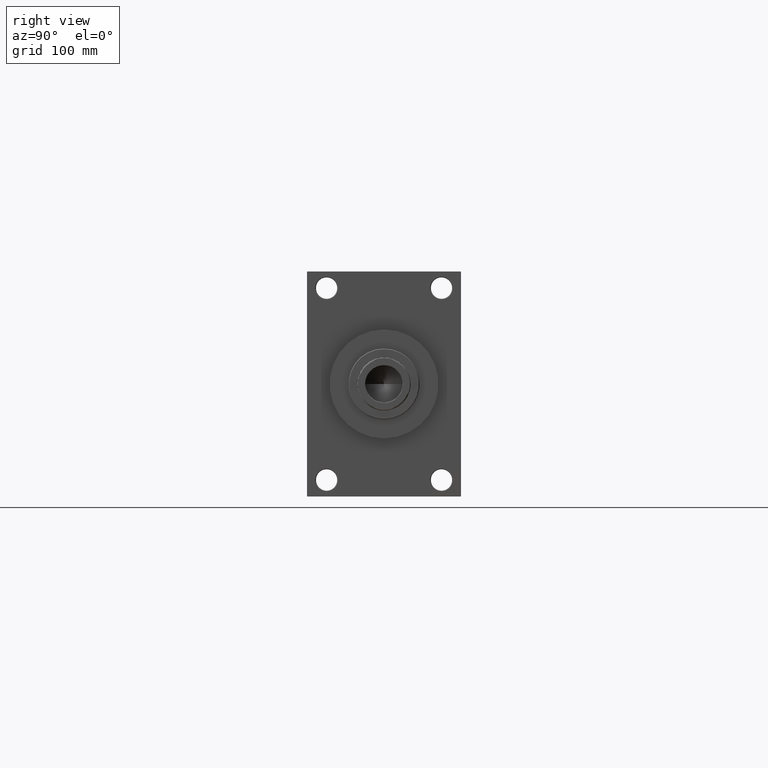
[diagram: clean part render]
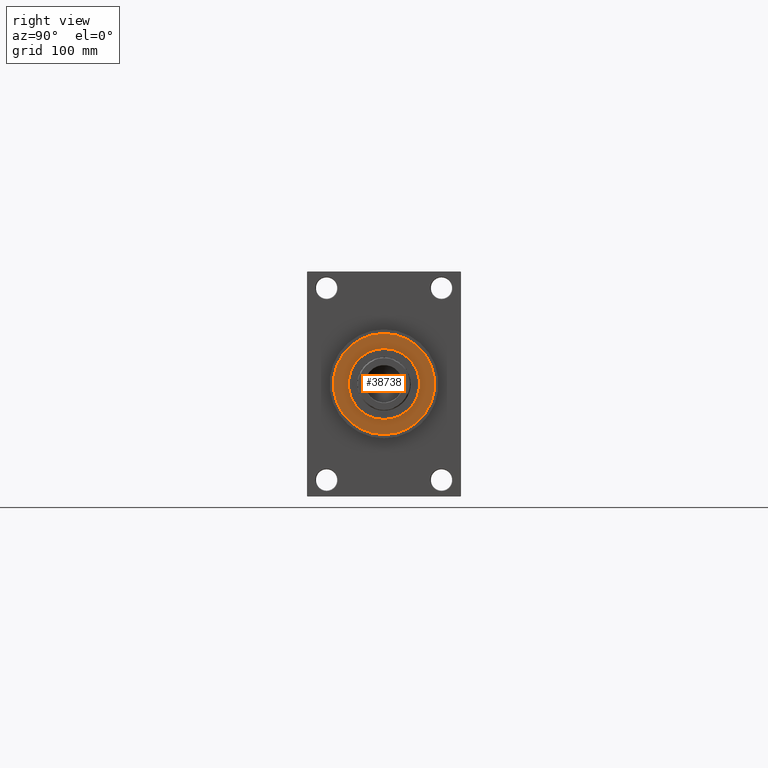
[diagram: same view with one face highlighted and labeled with its STEP entity id]
A machine part, right view. The second image highlights one B-rep face of the part: STEP entity #38738.
In plain terms, the highlighted planar face has unit normal (1, 0, 0).
Its self-contained STEP definition (entity closure, byte-faithful):
#1798 = ORIENTED_EDGE ( 'NONE', *, *, #30942, .T. ) ;
#4524 = EDGE_CURVE ( 'NONE', #8765, #13559, #33321, .T. ) ;
#7224 = CARTESIAN_POINT ( 'NONE',  ( 0.000000000000000000, 0.000000000000000000, 43.25999999999999801 ) ) ;
#8251 = CARTESIAN_POINT ( 'NONE',  ( -30.00000000000000000, 0.000000000000000000, 43.25999999999999801 ) ) ;
#8765 = VERTEX_POINT ( 'NONE', #39281 ) ;
#9641 = FACE_OUTER_BOUND ( 'NONE', #34173, .T. ) ;
#9751 = CIRCLE ( 'NONE', #41303, 42.75000000000000000 ) ;
#9796 = AXIS2_PLACEMENT_3D ( 'NONE', #12084, #29447, #22217 ) ;
#11082 = DIRECTION ( 'NONE',  ( 1.000000000000000000, 0.000000000000000000, 0.000000000000000000 ) ) ;
#12031 = EDGE_LOOP ( 'NONE', ( #19414, #15320 ) ) ;
#12084 = CARTESIAN_POINT ( 'NONE',  ( 0.000000000000000000, 0.000000000000000000, 43.25999999999999801 ) ) ;
#12449 = EDGE_CURVE ( 'NONE', #21381, #22694, #37529, .T. ) ;
#13126 = CARTESIAN_POINT ( 'NONE',  ( 0.000000000000000000, 0.000000000000000000, 43.25999999999999801 ) ) ;
#13559 = VERTEX_POINT ( 'NONE', #39390 ) ;
#15320 = ORIENTED_EDGE ( 'NONE', *, *, #12449, .F. ) ;
#17028 = DIRECTION ( 'NONE',  ( 1.000000000000000000, 0.000000000000000000, 0.000000000000000000 ) ) ;
#17334 = PLANE ( 'NONE',  #32970 ) ;
#18506 = EDGE_CURVE ( 'NONE', #22694, #21381, #18562, .T. ) ;
#18562 = CIRCLE ( 'NONE', #30865, 30.00000000000000000 ) ;
#19414 = ORIENTED_EDGE ( 'NONE', *, *, #18506, .F. ) ;
#21381 = VERTEX_POINT ( 'NONE', #25179 ) ;
#22217 = DIRECTION ( 'NONE',  ( 1.000000000000000000, 0.000000000000000000, 0.000000000000000000 ) ) ;
#22694 = VERTEX_POINT ( 'NONE', #8251 ) ;
#23848 = FACE_BOUND ( 'NONE', #12031, .T. ) ;
#24327 = CARTESIAN_POINT ( 'NONE',  ( 0.000000000000000000, 0.000000000000000000, 43.25999999999999801 ) ) ;
#25179 = CARTESIAN_POINT ( 'NONE',  ( 30.00000000000000000, 3.673940397442059178E-15, 43.25999999999999801 ) ) ;
#25535 = CARTESIAN_POINT ( 'NONE',  ( 0.000000000000000000, 0.000000000000000000, 43.25999999999999801 ) ) ;
#29387 = DIRECTION ( 'NONE',  ( 0.000000000000000000, 0.000000000000000000, 1.000000000000000000 ) ) ;
#29447 = DIRECTION ( 'NONE',  ( 0.000000000000000000, 0.000000000000000000, 1.000000000000000000 ) ) ;
#30865 = AXIS2_PLACEMENT_3D ( 'NONE', #25535, #36631, #17028 ) ;
#30942 = EDGE_CURVE ( 'NONE', #13559, #8765, #9751, .T. ) ;
#31468 = ORIENTED_EDGE ( 'NONE', *, *, #4524, .T. ) ;
#32970 = AXIS2_PLACEMENT_3D ( 'NONE', #24327, #39041, #35662 ) ;
#33321 = CIRCLE ( 'NONE', #37177, 42.75000000000000000 ) ;
#34173 = EDGE_LOOP ( 'NONE', ( #1798, #31468 ) ) ;
#34823 = DIRECTION ( 'NONE',  ( 0.000000000000000000, 0.000000000000000000, 1.000000000000000000 ) ) ;
#35662 = DIRECTION ( 'NONE',  ( 1.000000000000000000, 0.000000000000000000, -0.000000000000000000 ) ) ;
#36631 = DIRECTION ( 'NONE',  ( 0.000000000000000000, 0.000000000000000000, 1.000000000000000000 ) ) ;
#37177 = AXIS2_PLACEMENT_3D ( 'NONE', #13126, #34823, #45917 ) ;
#37529 = CIRCLE ( 'NONE', #9796, 30.00000000000000000 ) ;
#38738 = ADVANCED_FACE ( 'NONE', ( #23848, #9641 ), #17334, .T. ) ;
#39041 = DIRECTION ( 'NONE',  ( 0.000000000000000000, 0.000000000000000000, 1.000000000000000000 ) ) ;
#39281 = CARTESIAN_POINT ( 'NONE',  ( 42.75000000000000000, 5.235365066354935472E-15, 43.25999999999999801 ) ) ;
#39390 = CARTESIAN_POINT ( 'NONE',  ( -42.75000000000000000, 0.000000000000000000, 43.25999999999999801 ) ) ;
#41303 = AXIS2_PLACEMENT_3D ( 'NONE', #7224, #29387, #11082 ) ;
#45917 = DIRECTION ( 'NONE',  ( 1.000000000000000000, 0.000000000000000000, 0.000000000000000000 ) ) ;